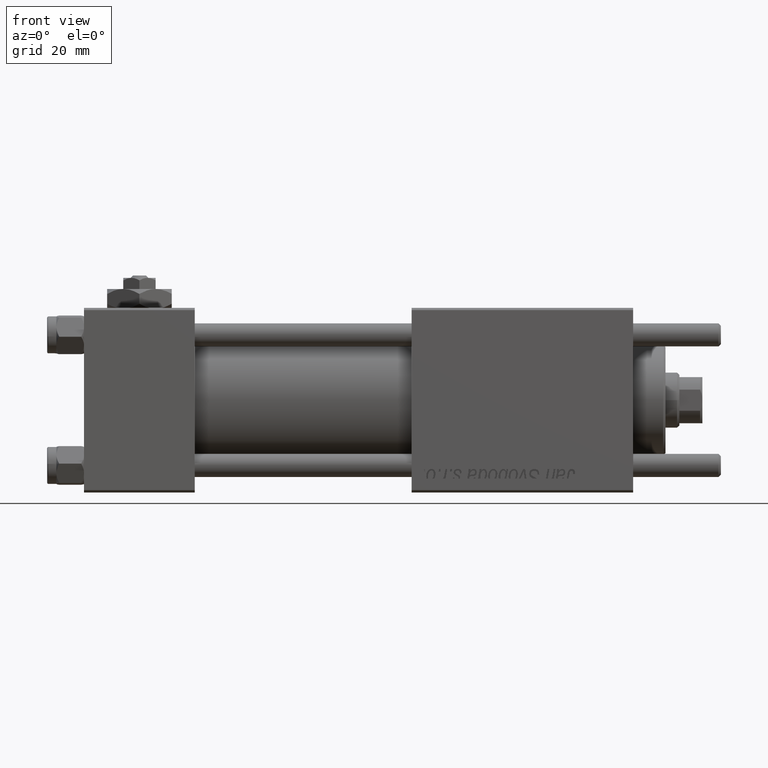
[diagram: clean part render]
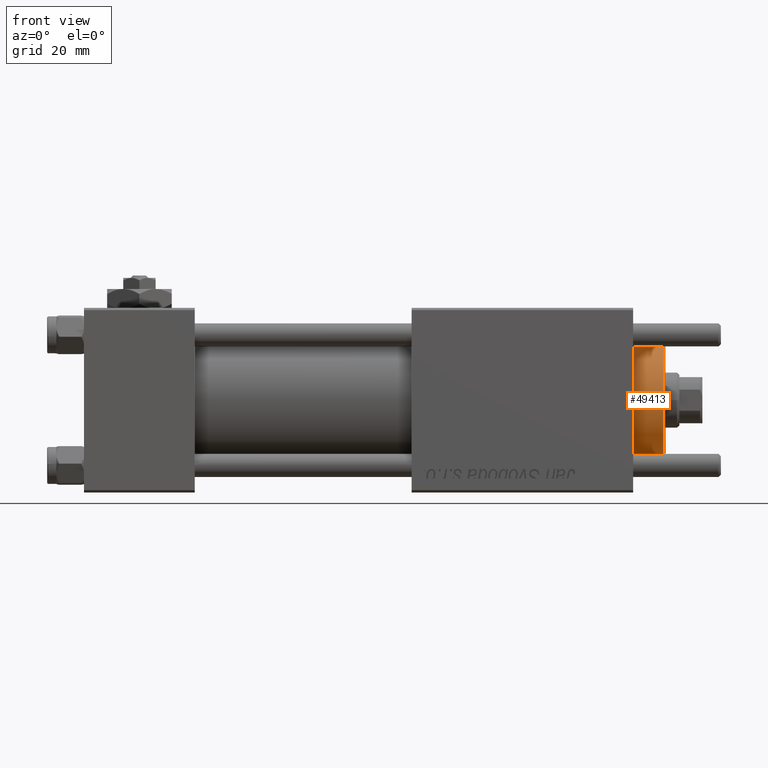
[diagram: same view with one face highlighted and labeled with its STEP entity id]
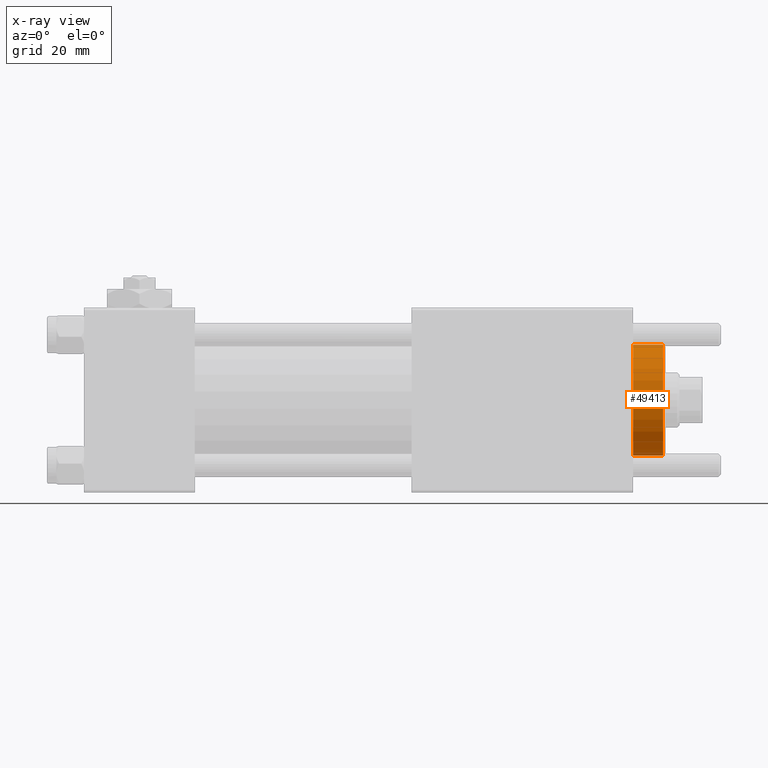
[diagram: x-ray of the same camera — body ghosted, the highlighted face saturated]
A machine part, front view. The second image highlights one B-rep face of the part: STEP entity #49413.
The next image is the same camera in x-ray: the body ghosted, the highlighted face saturated — about 0% of this face is hidden behind the body in this view.
In plain terms, the highlighted cylindrical surface (partial cylindrical patch) has radius 12 mm, axis along (-1, -0, 0).
Its self-contained STEP definition (entity closure, byte-faithful):
#777 = CARTESIAN_POINT ( 'NONE',  ( -12.00000000000000178, 0.000000000000000000, 35.19999999999999574 ) ) ;
#1909 = VECTOR ( 'NONE', #21005, 1000.000000000000000 ) ;
#2580 = VERTEX_POINT ( 'NONE', #18699 ) ;
#3732 = VERTEX_POINT ( 'NONE', #37907 ) ;
#3929 = CYLINDRICAL_SURFACE ( 'NONE', #49117, 12.00000000000000178 ) ;
#8920 = CIRCLE ( 'NONE', #29753, 12.00000000000000178 ) ;
#10899 = ORIENTED_EDGE ( 'NONE', *, *, #51799, .F. ) ;
#16402 = DIRECTION ( 'NONE',  ( -0.000000000000000000, -0.000000000000000000, -1.000000000000000000 ) ) ;
#17644 = DIRECTION ( 'NONE',  ( 1.000000000000000000, 0.000000000000000000, 0.000000000000000000 ) ) ;
#17896 = EDGE_CURVE ( 'NONE', #2580, #57017, #8920, .T. ) ;
#18699 = CARTESIAN_POINT ( 'NONE',  ( 12.00000000000000178, 1.469576158976824144E-15, 35.19999999999999574 ) ) ;
#19579 = VECTOR ( 'NONE', #16402, 1000.000000000000000 ) ;
#21005 = DIRECTION ( 'NONE',  ( -0.000000000000000000, -0.000000000000000000, -1.000000000000000000 ) ) ;
#21993 = FACE_OUTER_BOUND ( 'NONE', #55362, .T. ) ;
#25296 = CARTESIAN_POINT ( 'NONE',  ( -12.00000000000000178, 0.000000000000000000, 35.70000000000000284 ) ) ;
#26834 = CARTESIAN_POINT ( 'NONE',  ( 0.000000000000000000, 0.000000000000000000, 35.19999999999999574 ) ) ;
#29632 = LINE ( 'NONE', #30201, #1909 ) ;
#29753 = AXIS2_PLACEMENT_3D ( 'NONE', #26834, #31001, #17644 ) ;
#29766 = LINE ( 'NONE', #25296, #19579 ) ;
#30201 = CARTESIAN_POINT ( 'NONE',  ( 12.00000000000000178, 1.469576158976824144E-15, 35.70000000000000284 ) ) ;
#31001 = DIRECTION ( 'NONE',  ( 0.000000000000000000, 0.000000000000000000, -1.000000000000000000 ) ) ;
#34588 = ORIENTED_EDGE ( 'NONE', *, *, #17896, .T. ) ;
#34724 = ORIENTED_EDGE ( 'NONE', *, *, #38061, .T. ) ;
#35644 = DIRECTION ( 'NONE',  ( -1.000000000000000000, 0.000000000000000000, 0.000000000000000000 ) ) ;
#36537 = EDGE_CURVE ( 'NONE', #47702, #3732, #50796, .T. ) ;
#37907 = CARTESIAN_POINT ( 'NONE',  ( 12.00000000000000178, 1.469576158976824144E-15, 28.69999999999999929 ) ) ;
#38061 = EDGE_CURVE ( 'NONE', #57017, #47702, #29766, .T. ) ;
#45105 = CARTESIAN_POINT ( 'NONE',  ( -12.00000000000000178, 0.000000000000000000, 28.69999999999999929 ) ) ;
#46970 = AXIS2_PLACEMENT_3D ( 'NONE', #49654, #53521, #58531 ) ;
#47702 = VERTEX_POINT ( 'NONE', #45105 ) ;
#48397 = DIRECTION ( 'NONE',  ( -0.000000000000000000, -0.000000000000000000, -1.000000000000000000 ) ) ;
#48993 = CARTESIAN_POINT ( 'NONE',  ( 0.000000000000000000, 0.000000000000000000, 35.70000000000000284 ) ) ;
#49117 = AXIS2_PLACEMENT_3D ( 'NONE', #48993, #48397, #35644 ) ;
#49413 = ADVANCED_FACE ( 'NONE', ( #21993 ), #3929, .T. ) ;
#49654 = CARTESIAN_POINT ( 'NONE',  ( 0.000000000000000000, 0.000000000000000000, 28.69999999999999929 ) ) ;
#50796 = CIRCLE ( 'NONE', #46970, 12.00000000000000178 ) ;
#51799 = EDGE_CURVE ( 'NONE', #2580, #3732, #29632, .T. ) ;
#53521 = DIRECTION ( 'NONE',  ( 0.000000000000000000, 0.000000000000000000, 1.000000000000000000 ) ) ;
#55362 = EDGE_LOOP ( 'NONE', ( #10899, #34588, #34724, #56843 ) ) ;
#56843 = ORIENTED_EDGE ( 'NONE', *, *, #36537, .T. ) ;
#57017 = VERTEX_POINT ( 'NONE', #777 ) ;
#58531 = DIRECTION ( 'NONE',  ( 1.000000000000000000, 0.000000000000000000, 0.000000000000000000 ) ) ;